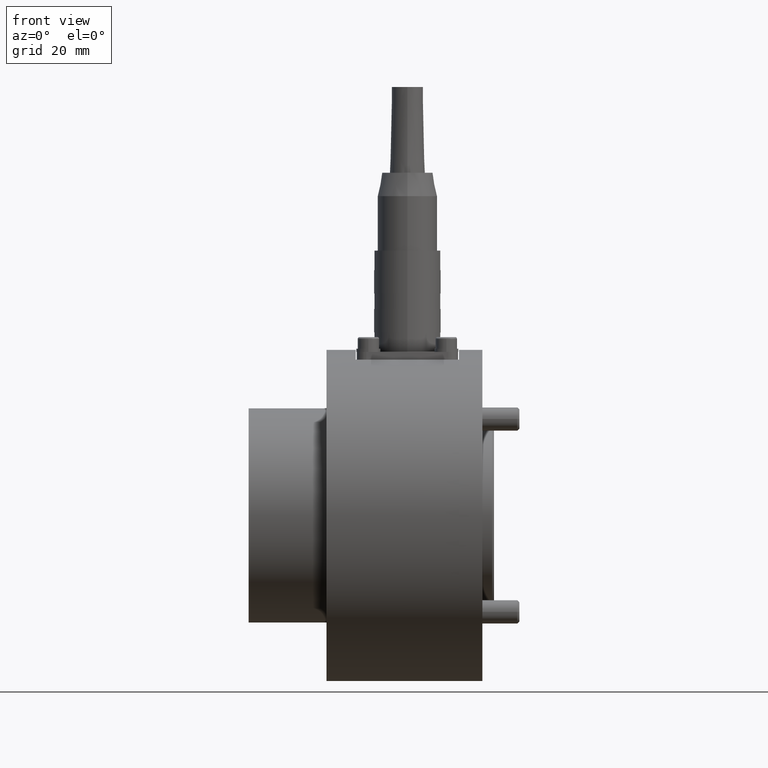
[diagram: clean part render]
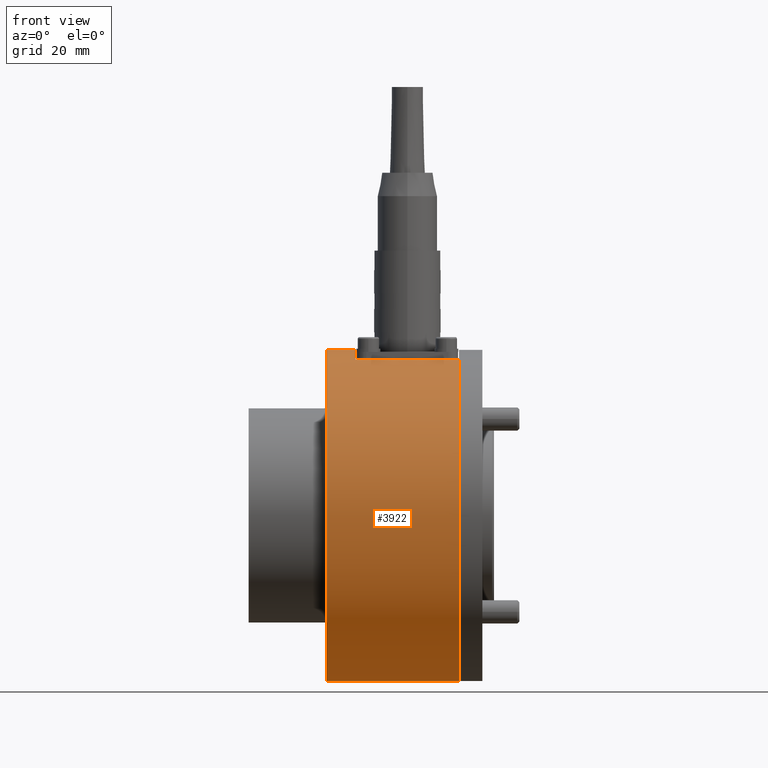
[diagram: same view with one face highlighted and labeled with its STEP entity id]
A machine part, front view. The second image highlights one B-rep face of the part: STEP entity #3922.
In plain terms, the highlighted cylindrical surface (partial cylindrical patch) has radius 42.5 mm, axis along (1, -0, 0).
Its self-contained STEP definition (entity closure, byte-faithful):
#2390=CARTESIAN_POINT('',(-11.500000000000000,43.824999999999989,0.0));
#2391=VERTEX_POINT('',#2390);
#2392=CARTESIAN_POINT('',(-19.0,43.824999999999989,0.0));
#2393=VERTEX_POINT('',#2392);
#2394=CARTESIAN_POINT('',(-11.500000000000000,43.824999999999989,0.0));
#2395=DIRECTION('',(-1.0,0.0,0.0));
#2396=VECTOR('',#2395,7.500000000000000);
#2397=LINE('',#2394,#2396);
#2398=EDGE_CURVE('',#2391,#2393,#2397,.T.);
#2417=CARTESIAN_POINT('',(15.0,-41.174999999999983,-5.204577E-015));
#2418=VERTEX_POINT('',#2417);
#2426=CARTESIAN_POINT('',(-19.0,-41.174999999999983,-5.204577E-015));
#2427=VERTEX_POINT('',#2426);
#2428=CARTESIAN_POINT('',(15.0,-41.174999999999983,-5.204577E-015));
#2429=DIRECTION('',(-1.0,0.0,0.0));
#2430=VECTOR('',#2429,34.0);
#2431=LINE('',#2428,#2430);
#2432=EDGE_CURVE('',#2418,#2427,#2431,.T.);
#3829=CARTESIAN_POINT('',(-11.500000000000000,41.324999999999989,14.361406616345072));
#3830=VERTEX_POINT('',#3829);
#3831=CARTESIAN_POINT('',(-11.500000000000000,1.324999999999999,0.0));
#3832=DIRECTION('',(-1.0,0.0,0.0));
#3833=DIRECTION('',(0.0,1.0,0.0));
#3834=AXIS2_PLACEMENT_3D('',#3831,#3832,#3833);
#3835=CIRCLE('',#3834,42.499999999999986);
#3836=EDGE_CURVE('',#3830,#2391,#3835,.T.);
#3862=CARTESIAN_POINT('',(15.0,41.324999999999989,14.361406616345072));
#3863=VERTEX_POINT('',#3862);
#3864=CARTESIAN_POINT('',(15.0,41.324999999999989,14.361406616345072));
#3865=DIRECTION('',(-1.0,0.0,0.0));
#3866=VECTOR('',#3865,26.500000000000000);
#3867=LINE('',#3864,#3866);
#3868=EDGE_CURVE('',#3863,#3830,#3867,.T.);
#3897=CARTESIAN_POINT('',(-2.0,1.324999999999999,0.0));
#3898=DIRECTION('',(1.0,0.0,0.0));
#3899=DIRECTION('',(0.0,1.0,0.0));
#3900=AXIS2_PLACEMENT_3D('',#3897,#3898,#3899);
#3901=CYLINDRICAL_SURFACE('',#3900,42.499999999999986);
#3902=ORIENTED_EDGE('',*,*,#2398,.T.);
#3903=CARTESIAN_POINT('',(-19.0,1.324999999999999,0.0));
#3904=DIRECTION('',(1.0,0.0,0.0));
#3905=DIRECTION('',(0.0,1.0,0.0));
#3906=AXIS2_PLACEMENT_3D('',#3903,#3904,#3905);
#3907=CIRCLE('',#3906,42.499999999999986);
#3908=EDGE_CURVE('',#2393,#2427,#3907,.T.);
#3909=ORIENTED_EDGE('',*,*,#3908,.T.);
#3910=ORIENTED_EDGE('',*,*,#2432,.F.);
#3911=CARTESIAN_POINT('',(15.0,1.324999999999999,0.0));
#3912=DIRECTION('',(1.0,0.0,0.0));
#3913=DIRECTION('',(0.0,1.0,0.0));
#3914=AXIS2_PLACEMENT_3D('',#3911,#3912,#3913);
#3915=CIRCLE('',#3914,42.499999999999986);
#3916=EDGE_CURVE('',#3863,#2418,#3915,.T.);
#3917=ORIENTED_EDGE('',*,*,#3916,.F.);
#3918=ORIENTED_EDGE('',*,*,#3868,.T.);
#3919=ORIENTED_EDGE('',*,*,#3836,.T.);
#3920=EDGE_LOOP('',(#3902,#3909,#3910,#3917,#3918,#3919));
#3921=FACE_OUTER_BOUND('',#3920,.T.);
#3922=ADVANCED_FACE('',(#3921),#3901,.T.);